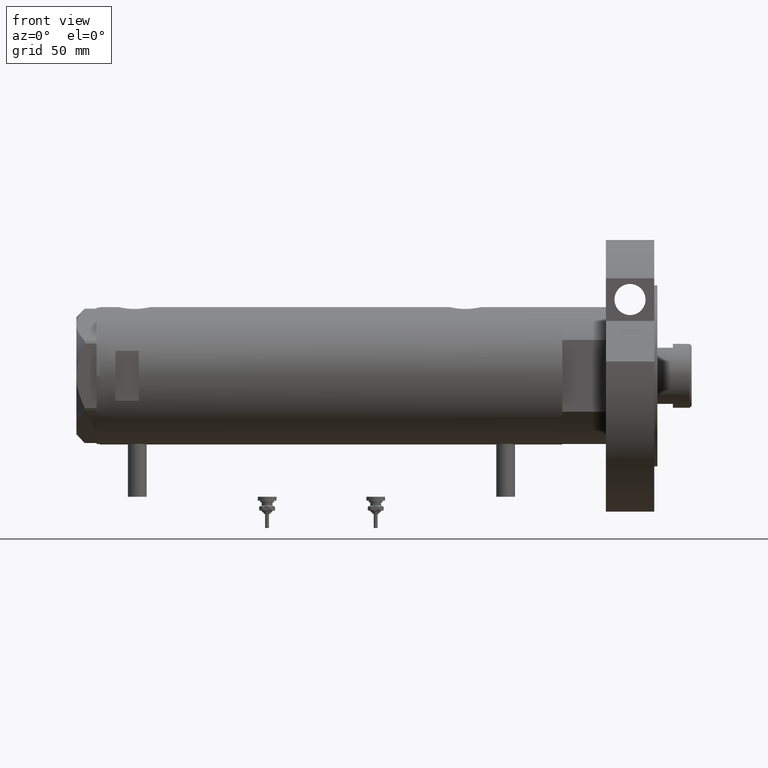
[diagram: clean part render]
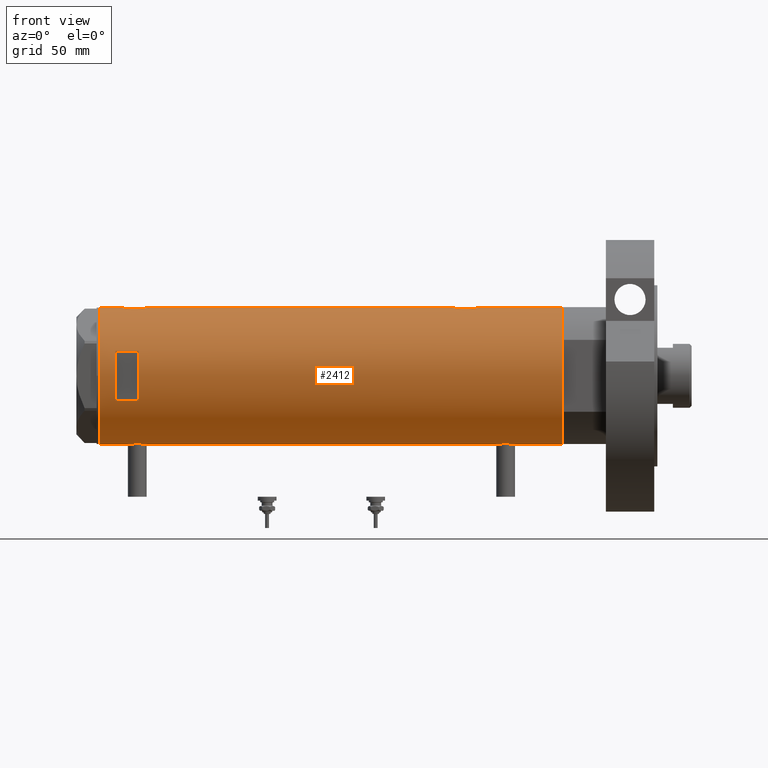
[diagram: same view with one face highlighted and labeled with its STEP entity id]
A machine part, front view. The second image highlights one B-rep face of the part: STEP entity #2412.
In plain terms, the highlighted cylindrical surface (partial cylindrical patch) has radius 44 mm, axis along (-1, -0, 0).
Its self-contained STEP definition (entity closure, byte-faithful):
#23 = CARTESIAN_POINT ( 'NONE',  ( 42.84850870634925002, -10.00026508230968325, 125.2441608487825988 ) ) ;
#99 = CARTESIAN_POINT ( 'NONE',  ( 42.92612181419237771, -9.662173761604313071, 128.4979978960971323 ) ) ;
#109 = CARTESIAN_POINT ( 'NONE',  ( -43.57664920749031978, -6.089110472216501257, -113.3236308686941385 ) ) ;
#128 = CARTESIAN_POINT ( 'NONE',  ( 43.24269204559829660, -8.130405600641545050, -80.26885497193008234 ) ) ;
#130 = EDGE_CURVE ( 'NONE', #2811, #1854, #4066, .T. ) ;
#137 = CARTESIAN_POINT ( 'NONE',  ( 43.80655905412561424, -4.132395729537634566, 135.0120532619376377 ) ) ;
#143 = CARTESIAN_POINT ( 'NONE',  ( -43.71863308610073773, -4.973248429199020215, -108.0926220987882687 ) ) ;
#163 = CARTESIAN_POINT ( 'NONE',  ( 43.13833976206232990, -8.672905216733550304, -81.07967078979186226 ) ) ;
#168 = AXIS2_PLACEMENT_3D ( 'NONE', #6607, #3704, #5573 ) ;
#175 = CARTESIAN_POINT ( 'NONE',  ( 43.85817087158036287, -3.542878095418166229, 116.5429633888447682 ) ) ;
#182 = CARTESIAN_POINT ( 'NONE',  ( -43.91347832647110039, -2.763895659397271665, -117.5093864937758497 ) ) ;
#203 = CARTESIAN_POINT ( 'NONE',  ( 42.92195198079053142, -9.681069926205539744, -88.68932500906515770 ) ) ;
#212 = CARTESIAN_POINT ( 'NONE',  ( -43.55964145621772587, -6.209995197331128480, 125.0152361338357565 ) ) ;
#223 = CARTESIAN_POINT ( 'NONE',  ( -43.57636709704394917, -6.091127289750676077, -110.4850067433901586 ) ) ;
#240 = ORIENTED_EDGE ( 'NONE', *, *, #823, .F. ) ;
#242 = CARTESIAN_POINT ( 'NONE',  ( 43.71528002050701645, -5.005885132985640418, -77.43693693285514712 ) ) ;
#254 = CARTESIAN_POINT ( 'NONE',  ( 44.00000000000000000, 0.000000000000000000, -148.1999999999999886 ) ) ;
#288 = CARTESIAN_POINT ( 'NONE',  ( -43.55981666146649900, -6.208773019004407701, 123.3756200080638195 ) ) ;
#367 = EDGE_CURVE ( 'NONE', #5848, #728, #6651, .T. ) ;
#392 = DIRECTION ( 'NONE',  ( 0.000000000000000000, 0.000000000000000000, 1.000000000000000000 ) ) ;
#617 = DIRECTION ( 'NONE',  ( 1.000000000000000000, 0.000000000000000000, 0.000000000000000000 ) ) ;
#645 = CARTESIAN_POINT ( 'NONE',  ( -43.58327167020068060, -6.041691433183235205, -110.2867244921663428 ) ) ;
#675 = CARTESIAN_POINT ( 'NONE',  ( 42.96858625215908489, -9.471543237354838496, 129.1244477931078336 ) ) ;
#685 = CARTESIAN_POINT ( 'NONE',  ( -43.88927795770375440, -3.124736516396337649, -117.3166740492380598 ) ) ;
#697 = AXIS2_PLACEMENT_3D ( 'NONE', #4098, #5774, #7442 ) ;
#724 = CARTESIAN_POINT ( 'NONE',  ( -43.55388615229803406, -6.249720082677240107, -112.3173251411198379 ) ) ;
#728 = VERTEX_POINT ( 'NONE', #2095 ) ;
#743 = CARTESIAN_POINT ( 'NONE',  ( 43.80655905412562134, -4.132395729537634566, -76.98794673806234812 ) ) ;
#751 = CARTESIAN_POINT ( 'NONE',  ( 43.99999999999998579, -0.6628808997490075461, 115.8999999999999915 ) ) ;
#776 = CARTESIAN_POINT ( 'NONE',  ( 43.39114022679083860, -7.298186114522535739, -79.25582720507938461 ) ) ;
#816 = CARTESIAN_POINT ( 'NONE',  ( 43.27861175590267351, -7.937636171351966752, -92.19102867990994810 ) ) ;
#823 = EDGE_CURVE ( 'NONE', #1006, #1289, #5584, .T. ) ;
#826 = CARTESIAN_POINT ( 'NONE',  ( -43.99432382855035684, -0.8140126287075735156, 117.9895783318308560 ) ) ;
#850 = ORIENTED_EDGE ( 'NONE', *, *, #946, .T. ) ;
#896 = CARTESIAN_POINT ( 'NONE',  ( 43.94187300917954531, -2.283844398366604800, 116.1587395318295250 ) ) ;
#904 = CARTESIAN_POINT ( 'NONE',  ( -43.97729452866927602, -1.427712738744854715, -105.8117709255657815 ) ) ;
#938 = CARTESIAN_POINT ( 'NONE',  ( 44.00000000000000000, -3.917205576288906830E-21, 135.9000000000000341 ) ) ;
#946 = EDGE_CURVE ( 'NONE', #2647, #1008, #6154, .T. ) ;
#965 = EDGE_CURVE ( 'NONE', #1008, #1402, #5501, .T. ) ;
#977 = VERTEX_POINT ( 'NONE', #4927 ) ;
#1006 = VERTEX_POINT ( 'NONE', #938 ) ;
#1008 = VERTEX_POINT ( 'NONE', #3898 ) ;
#1090 = ORIENTED_EDGE ( 'NONE', *, *, #6879, .F. ) ;
#1109 = CYLINDRICAL_SURFACE ( 'NONE', #6302, 44.00000000000000000 ) ;
#1126 = CARTESIAN_POINT ( 'NONE',  ( 43.13833976206232990, -8.672905216733560962, 130.9203292102081377 ) ) ;
#1130 = ORIENTED_EDGE ( 'NONE', *, *, #4938, .F. ) ;
#1166 = CARTESIAN_POINT ( 'NONE',  ( 43.27890888111421930, -7.936045294464972422, 131.9931843665719668 ) ) ;
#1241 = CARTESIAN_POINT ( 'NONE',  ( 43.57553740812844723, -6.102230194686611320, 117.9710034401132788 ) ) ;
#1280 = CARTESIAN_POINT ( 'NONE',  ( -43.80623767923740530, -4.134861581628529237, 128.9043636726069337 ) ) ;
#1283 = CARTESIAN_POINT ( 'NONE',  ( 43.77905627191559290, -4.445085099228545111, 116.9185916568396806 ) ) ;
#1289 = VERTEX_POINT ( 'NONE', #7540 ) ;
#1295 = CARTESIAN_POINT ( 'NONE',  ( -43.93596008603760339, -2.395372424984027582, -117.6834918053061330 ) ) ;
#1312 = CARTESIAN_POINT ( 'NONE',  ( 43.07321175413309788, -8.986876637256990819, -90.53428201988754154 ) ) ;
#1321 = CARTESIAN_POINT ( 'NONE',  ( -43.99999999999999289, -0.4134142287044815789, 130.4500000000000455 ) ) ;
#1352 = CARTESIAN_POINT ( 'NONE',  ( 43.50370990764398016, -6.606474645717129057, -78.56479064715114191 ) ) ;
#1358 = CARTESIAN_POINT ( 'NONE',  ( -43.97029046111976669, -1.628482392291942471, 130.2375861979205354 ) ) ;
#1359 = LINE ( 'NONE', #3233, #5578 ) ;
#1362 = B_SPLINE_CURVE_WITH_KNOTS ( 'NONE', 3,
 ( #6094, #4344, #7088, #3122, #5946, #743, #3081, #242, #2997, #5376, #1352, #776, #4884, #6512, #128, #163, #2505, #5450, #7119, #2582, #2433, #4839, #3731, #4767, #1858, #7160, #203, #2547, #1312, #1388, #4191, #816, #1939, #4271, #2470, #4803, #6595, #1893, #4230, #3695, #6552, #6021, #7197, #6630, #4533, #6131, #2195 ),
 .UNSPECIFIED., .F., .F.,
 ( 4, 2, 2, 2, 2, 2, 2, 2, 2, 2, 1, 2, 2, 2, 2, 2, 2, 2, 2, 2, 2, 2, 2, 4 ),
 ( 0.03136730421198213881, 0.03332724096696802751, 0.03528717772195391622, 0.03626714609944684670, 0.03724711447693978411, 0.03920705123192565894, 0.04018701960941859636, 0.04116698798691152683, 0.04312692474189736697, 0.04410689311939030438, 0.04508686149688324180, 0.04606682987437617921, 0.04704679825186912356, 0.04900673500685504003, 0.05096667176184094955, 0.05292660851682686601, 0.05390657689431983812, 0.05488654527181281717, 0.05586651364930578928, 0.05684648202679876139, 0.05880641878178470561, 0.05978638715927767078, 0.06076635553677063595, 0.06272629229175656629 ),
 .UNSPECIFIED. ) ;
#1367 = CARTESIAN_POINT ( 'NONE',  ( -43.94477385411916970, -2.211843467998029666, -106.0509277007713678 ) ) ;
#1388 = CARTESIAN_POINT ( 'NONE',  ( 43.13689707656756411, -8.680169016269173810, -91.10836902111202562 ) ) ;
#1402 = VERTEX_POINT ( 'NONE', #3085 ) ;
#1554 = CIRCLE ( 'NONE', #4856, 44.00000000000000000 ) ;
#1721 = CARTESIAN_POINT ( 'NONE',  ( 43.68175117880464597, -5.289576318274422206, 134.3927754329155846 ) ) ;
#1773 = DIRECTION ( 'NONE',  ( -1.000000000000000000, 0.000000000000000000, 0.000000000000000000 ) ) ;
#1793 = CARTESIAN_POINT ( 'NONE',  ( 43.35257225115238100, -7.523216248090027314, 119.3039469640765731 ) ) ;
#1831 = CARTESIAN_POINT ( 'NONE',  ( 43.24192112218942441, -8.134529092006102857, 120.0744777013589299 ) ) ;
#1839 = CARTESIAN_POINT ( 'NONE',  ( -43.55964145621772587, -6.209995197331129368, -111.0847638661642947 ) ) ;
#1854 = VERTEX_POINT ( 'NONE', #4083 ) ;
#1858 = CARTESIAN_POINT ( 'NONE',  ( 42.84850870634926423, -10.00026508230968503, -86.75583915121745804 ) ) ;
#1869 = CARTESIAN_POINT ( 'NONE',  ( 43.71626298452614634, -5.019105827807306852, 117.2258656202040470 ) ) ;
#1893 = CARTESIAN_POINT ( 'NONE',  ( 43.61181667275830165, -5.838254419127787642, -94.22544109417493985 ) ) ;
#1901 = ORIENTED_EDGE ( 'NONE', *, *, #367, .F. ) ;
#1904 = CARTESIAN_POINT ( 'NONE',  ( -43.74813644611202079, -4.709999724143500544, 128.3284404394322564 ) ) ;
#1927 = CARTESIAN_POINT ( 'NONE',  ( -44.00000000000000000, 3.205170455528113082E-15, 130.4500000000000171 ) ) ;
#1939 = CARTESIAN_POINT ( 'NONE',  ( 43.35257225115238811, -7.523216248090025537, -92.69605303592345535 ) ) ;
#1948 = CARTESIAN_POINT ( 'NONE',  ( -43.80686114384899810, -4.128296917151109469, 119.4898414487168878 ) ) ;
#1959 = CARTESIAN_POINT ( 'NONE',  ( -43.83513771791772484, -3.820747781112549202, -106.9367898170362565 ) ) ;
#1985 = CARTESIAN_POINT ( 'NONE',  ( -43.95442538259508325, -2.011679190499021885, 118.2790645349021617 ) ) ;
#2020 = CARTESIAN_POINT ( 'NONE',  ( -43.59994860325049615, -5.920144153815568799, 122.1859364243023549 ) ) ;
#2050 = CARTESIAN_POINT ( 'NONE',  ( -44.00000000000000000, 5.388445916248353619E-15, -148.1999999999999886 ) ) ;
#2071 = CARTESIAN_POINT ( 'NONE',  ( -44.00000000000000711, -0.4134142287044808017, -105.6500000000000057 ) ) ;
#2095 = CARTESIAN_POINT ( 'NONE',  ( 15.96871942267132027, -40.99999999999999289, 138.1999999999999886 ) ) ;
#2173 = EDGE_CURVE ( 'NONE', #7045, #1402, #1362, .T. ) ;
#2195 = CARTESIAN_POINT ( 'NONE',  ( 44.00000000000000000, -2.552687571866728611E-15, -96.10000000000000853 ) ) ;
#2226 = FACE_OUTER_BOUND ( 'NONE', #2756, .T. ) ;
#2264 = CARTESIAN_POINT ( 'NONE',  ( -15.96871942267132027, -40.99999999999999289, 138.1999999999999886 ) ) ;
#2279 = CARTESIAN_POINT ( 'NONE',  ( -43.99417593155912698, -0.8219945290704717689, -105.6906189758703931 ) ) ;
#2330 = CARTESIAN_POINT ( 'NONE',  ( 42.99316244204496229, -9.359736474891649394, 129.4360302003217669 ) ) ;
#2361 = CARTESIAN_POINT ( 'NONE',  ( 43.99999999999999289, -0.6537011444665495885, 135.9000000000000341 ) ) ;
#2396 = VERTEX_POINT ( 'NONE', #2264 ) ;
#2412 = ADVANCED_FACE ( 'NONE', ( #2226, #5285 ), #1109, .T. ) ;
#2433 = CARTESIAN_POINT ( 'NONE',  ( 42.89003040145178147, -9.821289533110931558, -84.13508371670005204 ) ) ;
#2443 = CARTESIAN_POINT ( 'NONE',  ( 43.35323102813806173, -7.519449998269469582, 132.5004228928426642 ) ) ;
#2470 = CARTESIAN_POINT ( 'NONE',  ( 43.46477581456301920, -6.845969322274847890, -93.39644460123308534 ) ) ;
#2484 = CARTESIAN_POINT ( 'NONE',  ( -43.64064219598290606, -5.614224114468902904, -114.6768548961947261 ) ) ;
#2488 = ORIENTED_EDGE ( 'NONE', *, *, #2173, .F. ) ;
#2505 = CARTESIAN_POINT ( 'NONE',  ( 43.07447880731469780, -8.980869115410037296, -81.65290029795900750 ) ) ;
#2515 = CARTESIAN_POINT ( 'NONE',  ( -43.66524845950888789, -5.422010366683132965, 121.0646195664701850 ) ) ;
#2527 = CARTESIAN_POINT ( 'NONE',  ( -43.55981666146650610, -6.208773019004409477, -112.7243799919361606 ) ) ;
#2547 = CARTESIAN_POINT ( 'NONE',  ( 42.96573602780769363, -9.487415353952519226, -89.32734544583622949 ) ) ;
#2566 = CARTESIAN_POINT ( 'NONE',  ( -43.74870614644074607, -4.704745394280565485, -116.0344648734002249 ) ) ;
#2582 = CARTESIAN_POINT ( 'NONE',  ( 42.92612181419234219, -9.662173761604309519, -83.50200210390283928 ) ) ;
#2590 = CARTESIAN_POINT ( 'NONE',  ( -43.64064219598290606, -5.614224114468902904, 121.4231451038052683 ) ) ;
#2626 = CARTESIAN_POINT ( 'NONE',  ( -43.58327167020067350, -6.041691433183231652, 125.8132755078336658 ) ) ;
#2647 = VERTEX_POINT ( 'NONE', #2050 ) ;
#2756 = EDGE_LOOP ( 'NONE', ( #6359, #850, #4187, #2488, #7493, #240, #4546, #1130, #7145, #6620, #5598, #7389 ) ) ;
#2757 = CARTESIAN_POINT ( 'NONE',  ( -44.00000000000000000, 5.388445781982983516E-15, 117.9500000000000028 ) ) ;
#2811 = VERTEX_POINT ( 'NONE', #1927 ) ;
#2939 = CARTESIAN_POINT ( 'NONE',  ( 42.84860178791323193, -9.999866241079301332, 126.2339638269416895 ) ) ;
#2977 = CARTESIAN_POINT ( 'NONE',  ( -43.59959777593760322, -5.922725608094071781, -109.8935068878258079 ) ) ;
#2997 = CARTESIAN_POINT ( 'NONE',  ( 43.68175117880463887, -5.289576318274435529, -77.60722456708444383 ) ) ;
#3011 = CARTESIAN_POINT ( 'NONE',  ( 43.71528002050701645, -5.005885132985630648, 134.5630630671448955 ) ) ;
#3021 = CARTESIAN_POINT ( 'NONE',  ( -43.71916086763248899, -4.968610719017467758, -115.7133599885462871 ) ) ;
#3050 = CARTESIAN_POINT ( 'NONE',  ( -43.94477385411916259, -2.211843467998029222, 130.0490722992286408 ) ) ;
#3053 = CARTESIAN_POINT ( 'NONE',  ( 43.98543813568862504, -1.304985013906734048, 135.8365306627388236 ) ) ;
#3062 = CARTESIAN_POINT ( 'NONE',  ( -43.60904414879379942, -5.852991024272603759, -109.6984368334709075 ) ) ;
#3078 = VERTEX_POINT ( 'NONE', #5344 ) ;
#3081 = CARTESIAN_POINT ( 'NONE',  ( 43.77763691689010273, -4.427538730370040199, -77.12757287791932015 ) ) ;
#3085 = CARTESIAN_POINT ( 'NONE',  ( 44.00000000000000000, -2.552687571866728611E-15, -96.10000000000000853 ) ) ;
#3098 = CARTESIAN_POINT ( 'NONE',  ( -43.97755541524606571, -1.419649999726221967, -117.9901114392363439 ) ) ;
#3122 = CARTESIAN_POINT ( 'NONE',  ( 43.92776409818817740, -2.602555515054471247, -76.42196650712921269 ) ) ;
#3132 = CARTESIAN_POINT ( 'NONE',  ( -44.00000000000000000, 3.205170455528113082E-15, 130.4500000000000171 ) ) ;
#3143 = CARTESIAN_POINT ( 'NONE',  ( -43.59994860325051036, -5.920144153815573240, -113.9140635756975968 ) ) ;
#3177 = EDGE_CURVE ( 'NONE', #3408, #2811, #3774, .T. ) ;
#3204 = CARTESIAN_POINT ( 'NONE',  ( -43.83572624786196315, -3.813948911733267888, 119.2316356977933651 ) ) ;
#3222 = DIRECTION ( 'NONE',  ( 0.000000000000000000, 0.000000000000000000, 1.000000000000000000 ) ) ;
#3233 = CARTESIAN_POINT ( 'NONE',  ( 44.00000000000000000, 0.000000000000000000, -148.1999999999999886 ) ) ;
#3265 = CARTESIAN_POINT ( 'NONE',  ( -44.00000000000000000, 5.388445916248353619E-15, -148.1999999999999886 ) ) ;
#3294 = DIRECTION ( 'NONE',  ( 0.000000000000000000, 0.000000000000000000, 1.000000000000000000 ) ) ;
#3408 = VERTEX_POINT ( 'NONE', #6441 ) ;
#3474 = CARTESIAN_POINT ( 'NONE',  ( 43.07447880731469780, -8.980869115410031966, 130.3470997020410209 ) ) ;
#3511 = CIRCLE ( 'NONE', #4000, 44.00000000000000000 ) ;
#3555 = CARTESIAN_POINT ( 'NONE',  ( 43.39114022679084570, -7.298186114522522416, 132.7441727949206438 ) ) ;
#3562 = CARTESIAN_POINT ( 'NONE',  ( 15.96871942267132027, -40.99999999999999289, 123.1999999999999744 ) ) ;
#3598 = LINE ( 'NONE', #5887, #5006 ) ;
#3628 = CARTESIAN_POINT ( 'NONE',  ( -43.95404166778755695, -2.020054257598456360, 130.1180894548565448 ) ) ;
#3639 = CARTESIAN_POINT ( 'NONE',  ( -43.83572624786197025, -3.813948911733268776, -116.8683643022066150 ) ) ;
#3695 = CARTESIAN_POINT ( 'NONE',  ( 43.77905627191558580, -4.445085099228550440, -95.08140834316036205 ) ) ;
#3701 = CARTESIAN_POINT ( 'NONE',  ( -43.91347832647110039, -2.763895659397270776, 118.5906135062241589 ) ) ;
#3704 = DIRECTION ( 'NONE',  ( 0.000000000000000000, 0.000000000000000000, 1.000000000000000000 ) ) ;
#3710 = CARTESIAN_POINT ( 'NONE',  ( -43.95404166778755695, -2.020054257598466574, -105.9819105451434638 ) ) ;
#3731 = CARTESIAN_POINT ( 'NONE',  ( 42.85249883256043546, -9.983208936152868418, -85.43427783458179192 ) ) ;
#3774 = B_SPLINE_CURVE_WITH_KNOTS ( 'NONE', 3,
 ( #2757, #5531, #826, #5499, #4968, #1985, #5384, #3701, #4925, #6522, #3204, #1948, #4314, #6637, #2515, #2590, #6105, #2020, #7170, #4851, #288, #5460, #4279, #212, #4810, #2626, #7279, #7129, #6604, #4355, #4199, #1904, #1280, #7238, #6561, #5994, #3050, #3628, #1358, #5954, #4241, #1321, #3132 ),
 .UNSPECIFIED., .F., .F.,
 ( 4, 2, 2, 1, 2, 2, 2, 2, 2, 2, 2, 2, 2, 2, 2, 2, 2, 2, 2, 2, 2, 4 ),
 ( 0.01956509074799516260, 0.02078761141254046457, 0.02139887174481311383, 0.02201013207708576655, 0.02262139240935841580, 0.02323265274163106506, 0.02445517340617638785, 0.02567769407072171411, 0.02690021473526703691, 0.02751147506753969657, 0.02812273539981235970, 0.02934525606435772760, 0.03056777672890308856, 0.03117903706117573087, 0.03179029739344837319, 0.03301281805799358149, 0.03423533872253878979, 0.03545785938708399809, 0.03668038005162919946, 0.03729164038390180014, 0.03790290071617440082, 0.03912542138071962300 ),
 .UNSPECIFIED. ) ;
#3802 = LINE ( 'NONE', #5591, #6206 ) ;
#3804 = DIRECTION ( 'NONE',  ( 0.000000000000000000, 0.000000000000000000, 1.000000000000000000 ) ) ;
#3887 = CIRCLE ( 'NONE', #697, 44.00000000000000000 ) ;
#3898 = CARTESIAN_POINT ( 'NONE',  ( 44.00000000000000000, 0.000000000000000000, -148.1999999999999886 ) ) ;
#3952 = VECTOR ( 'NONE', #5857, 1000.000000000000000 ) ;
#4000 = AXIS2_PLACEMENT_3D ( 'NONE', #6325, #6431, #1773 ) ;
#4026 = ORIENTED_EDGE ( 'NONE', *, *, #5165, .F. ) ;
#4053 = CARTESIAN_POINT ( 'NONE',  ( 43.24269204559828239, -8.130405600641548602, 131.7311450280699034 ) ) ;
#4066 = LINE ( 'NONE', #5247, #3952 ) ;
#4083 = CARTESIAN_POINT ( 'NONE',  ( -44.00000000000000000, 5.388445916248353619E-15, 148.1999999999999886 ) ) ;
#4098 = CARTESIAN_POINT ( 'NONE',  ( 0.000000000000000000, 0.000000000000000000, 138.1999999999999886 ) ) ;
#4130 = CARTESIAN_POINT ( 'NONE',  ( 42.92195198079053142, -9.681069926205541520, 123.3106749909349134 ) ) ;
#4131 = LINE ( 'NONE', #5422, #4255 ) ;
#4169 = CARTESIAN_POINT ( 'NONE',  ( 43.46477581456304051, -6.845969322274839008, 118.6035553987669147 ) ) ;
#4175 = CARTESIAN_POINT ( 'NONE',  ( -43.64013512596971367, -5.618144550806293047, -109.1311574562683404 ) ) ;
#4187 = ORIENTED_EDGE ( 'NONE', *, *, #965, .T. ) ;
#4191 = CARTESIAN_POINT ( 'NONE',  ( 43.24192112218942441, -8.134529092006102857, -91.92552229864112689 ) ) ;
#4199 = CARTESIAN_POINT ( 'NONE',  ( -43.71863308610075194, -4.973248429199021992, 128.0073779012117257 ) ) ;
#4201 = CARTESIAN_POINT ( 'NONE',  ( 42.86761451923556621, -9.918101748202657220, 127.2186752354962636 ) ) ;
#4230 = CARTESIAN_POINT ( 'NONE',  ( 43.71626298452615345, -5.019105827807321951, -94.77413437979603827 ) ) ;
#4237 = EDGE_LOOP ( 'NONE', ( #4026, #1090, #5147, #1901 ) ) ;
#4241 = CARTESIAN_POINT ( 'NONE',  ( -43.99417593155911987, -0.8219945290704597785, 130.4093810241296012 ) ) ;
#4252 = CARTESIAN_POINT ( 'NONE',  ( -43.80686114384900520, -4.128296917151112133, -116.6101585512831207 ) ) ;
#4255 = VECTOR ( 'NONE', #4698, 1000.000000000000000 ) ;
#4271 = CARTESIAN_POINT ( 'NONE',  ( 43.39001814939470592, -7.304817421876465211, -92.93703460671677874 ) ) ;
#4279 = CARTESIAN_POINT ( 'NONE',  ( -43.55380622335314200, -6.250277076879244831, 124.6088983339019194 ) ) ;
#4312 = VERTEX_POINT ( 'NONE', #7473 ) ;
#4314 = CARTESIAN_POINT ( 'NONE',  ( -43.74870614644076738, -4.704745394280562820, 120.0655351265997410 ) ) ;
#4344 = CARTESIAN_POINT ( 'NONE',  ( 44.00000000000000000, -0.6537011444665536963, -76.10000000000002274 ) ) ;
#4355 = CARTESIAN_POINT ( 'NONE',  ( -43.66469451360047316, -5.426465874727615990, 127.3277459186421225 ) ) ;
#4533 = CARTESIAN_POINT ( 'NONE',  ( 43.98503203903424463, -1.316644100880403956, -96.03472955295633540 ) ) ;
#4546 = ORIENTED_EDGE ( 'NONE', *, *, #6580, .T. ) ;
#4576 = CARTESIAN_POINT ( 'NONE',  ( -43.97029046111977379, -1.628482392291957126, -105.8624138020794447 ) ) ;
#4633 = VERTEX_POINT ( 'NONE', #5047 ) ;
#4662 = CARTESIAN_POINT ( 'NONE',  ( 42.89003040145177437, -9.821289533110936887, 127.8649162832999622 ) ) ;
#4697 = CARTESIAN_POINT ( 'NONE',  ( 42.86369059155248351, -9.935849517229273786, 124.5936258998180222 ) ) ;
#4698 = DIRECTION ( 'NONE',  ( 0.000000000000000000, 0.000000000000000000, 1.000000000000000000 ) ) ;
#4740 = CARTESIAN_POINT ( 'NONE',  ( 43.13689707656755701, -8.680169016269175586, 120.8916309788880312 ) ) ;
#4767 = CARTESIAN_POINT ( 'NONE',  ( 42.84860178791321772, -9.999866241079296003, -85.76603617305838156 ) ) ;
#4803 = CARTESIAN_POINT ( 'NONE',  ( 43.50208939911752992, -6.605519787823897815, -93.61487246254432648 ) ) ;
#4810 = CARTESIAN_POINT ( 'NONE',  ( -43.57636709704393496, -6.091127289750671636, 125.6149932566098215 ) ) ;
#4812 = CARTESIAN_POINT ( 'NONE',  ( 43.88549648731375896, -3.229309612650777872, 135.3866430248638437 ) ) ;
#4819 = CARTESIAN_POINT ( 'NONE',  ( -43.87623998657198143, -3.302247739865014964, -117.2103434351974443 ) ) ;
#4839 = CARTESIAN_POINT ( 'NONE',  ( 42.86761451923556621, -9.918101748202653667, -84.78132476450375066 ) ) ;
#4851 = CARTESIAN_POINT ( 'NONE',  ( -43.57664920749031978, -6.089110472216502146, 122.7763691313058985 ) ) ;
#4856 = AXIS2_PLACEMENT_3D ( 'NONE', #7130, #7015, #7171 ) ;
#4884 = CARTESIAN_POINT ( 'NONE',  ( 43.35323102813806173, -7.519449998269473134, -79.49957710715735004 ) ) ;
#4902 = CARTESIAN_POINT ( 'NONE',  ( -44.00000000000000000, 5.388445781982983516E-15, -118.1500000000000057 ) ) ;
#4925 = CARTESIAN_POINT ( 'NONE',  ( -43.88927795770376150, -3.124736516396337205, 118.7833259507619630 ) ) ;
#4927 = CARTESIAN_POINT ( 'NONE',  ( -15.96871942267132027, -40.99999999999999289, 123.1999999999999744 ) ) ;
#4935 = CARTESIAN_POINT ( 'NONE',  ( 44.00000000000000000, -3.917104602093038540E-21, -76.10000000000000853 ) ) ;
#4938 = EDGE_CURVE ( 'NONE', #1854, #4633, #1554, .T. ) ;
#4968 = CARTESIAN_POINT ( 'NONE',  ( -43.97059312650997498, -1.620278982928819778, 118.1602130861413116 ) ) ;
#5004 = EDGE_CURVE ( 'NONE', #7045, #1289, #1359, .T. ) ;
#5006 = VECTOR ( 'NONE', #5924, 1000.000000000000000 ) ;
#5047 = CARTESIAN_POINT ( 'NONE',  ( 44.00000000000000000, 0.000000000000000000, 148.1999999999999886 ) ) ;
#5147 = ORIENTED_EDGE ( 'NONE', *, *, #5630, .F. ) ;
#5165 = EDGE_CURVE ( 'NONE', #977, #5848, #3511, .T. ) ;
#5235 = CARTESIAN_POINT ( 'NONE',  ( 43.50370990764397305, -6.606474645717115735, 133.4352093528489149 ) ) ;
#5247 = CARTESIAN_POINT ( 'NONE',  ( -44.00000000000000000, 5.388445916248353619E-15, -148.1999999999999886 ) ) ;
#5285 = FACE_BOUND ( 'NONE', #4237, .T. ) ;
#5304 = CARTESIAN_POINT ( 'NONE',  ( 43.07321175413309078, -8.986876637256990819, 121.4657179801124727 ) ) ;
#5314 = CARTESIAN_POINT ( 'NONE',  ( -43.74813644611199948, -4.709999724143497879, -107.7715595605677095 ) ) ;
#5344 = CARTESIAN_POINT ( 'NONE',  ( -44.00000000000000000, 4.742435893011557518E-16, -105.6499999999999915 ) ) ;
#5357 = CARTESIAN_POINT ( 'NONE',  ( -43.66524845950890210, -5.422010366683132965, -115.0353804335297809 ) ) ;
#5376 = CARTESIAN_POINT ( 'NONE',  ( 43.57790701154753066, -6.104591320335878812, -78.15258699105068274 ) ) ;
#5384 = CARTESIAN_POINT ( 'NONE',  ( -43.93596008603758918, -2.395372424984029802, 118.4165081946938756 ) ) ;
#5386 = CARTESIAN_POINT ( 'NONE',  ( 43.92776409818819872, -2.602555515054473467, 135.5780334928707589 ) ) ;
#5393 = CARTESIAN_POINT ( 'NONE',  ( -43.66469451360045895, -5.426465874727613325, -108.7722540813579002 ) ) ;
#5421 = CARTESIAN_POINT ( 'NONE',  ( 44.00000000000000000, -1.726036355082439716E-15, 115.9000000000000199 ) ) ;
#5422 = CARTESIAN_POINT ( 'NONE',  ( -44.00000000000000000, 5.388445916248353619E-15, -148.1999999999999886 ) ) ;
#5426 = VECTOR ( 'NONE', #7132, 1000.000000000000000 ) ;
#5450 = CARTESIAN_POINT ( 'NONE',  ( 42.99316244204495518, -9.359736474891656499, -82.56396979967827576 ) ) ;
#5460 = CARTESIAN_POINT ( 'NONE',  ( -43.55388615229802696, -6.249720082677238331, 123.7826748588801564 ) ) ;
#5469 = CARTESIAN_POINT ( 'NONE',  ( -43.58358352828439308, -6.039443007521657414, -113.5216309838574347 ) ) ;
#5499 = CARTESIAN_POINT ( 'NONE',  ( -43.97755541524607992, -1.419649999726221745, 118.1098885607636646 ) ) ;
#5501 = LINE ( 'NONE', #254, #5426 ) ;
#5531 = CARTESIAN_POINT ( 'NONE',  ( -44.00000000000001421, -0.4080709675389180835, 117.9500000000000171 ) ) ;
#5532 = CARTESIAN_POINT ( 'NONE',  ( 43.98503203903423753, -1.316644100880400625, 115.9652704470436788 ) ) ;
#5555 = EDGE_CURVE ( 'NONE', #2647, #4312, #6160, .T. ) ;
#5573 = DIRECTION ( 'NONE',  ( 1.000000000000000000, 0.000000000000000000, 0.000000000000000000 ) ) ;
#5578 = VECTOR ( 'NONE', #392, 1000.000000000000000 ) ;
#5584 = B_SPLINE_CURVE_WITH_KNOTS ( 'NONE', 3,
 ( #6377, #2361, #3053, #5386, #4812, #137, #5915, #3011, #1721, #7058, #5235, #3555, #2443, #1166, #4053, #1126, #3474, #2330, #675, #99, #4662, #4201, #5842, #2939, #23, #4697, #4130, #7017, #5304, #4740, #1831, #5880, #1793, #6451, #4169, #6488, #1241, #7096, #1869, #1283, #175, #6566, #7206, #896, #5532, #751, #5421 ),
 .UNSPECIFIED., .F., .F.,
 ( 4, 2, 2, 2, 2, 2, 2, 2, 2, 2, 1, 2, 2, 2, 2, 2, 2, 2, 2, 2, 2, 2, 2, 4 ),
 ( 0.03136730421198213187, 0.03332724096696802751, 0.03528717772195392316, 0.03626714609944686751, 0.03724711447693981187, 0.03920705123192570751, 0.04018701960941865881, 0.04116698798691159622, 0.04312692474189755432, 0.04410689311939049867, 0.04508686149688344302, 0.04606682987437638044, 0.04704679825186932479, 0.04900673500685520656, 0.05096667176184109527, 0.05292660851682697010, 0.05390657689431993527, 0.05488654527181288656, 0.05586651364930585173, 0.05684648202679880302, 0.05880641878178471949, 0.05978638715927768466, 0.06076635553677064983, 0.06272629229175658017 ),
 .UNSPECIFIED. ) ;
#5591 = CARTESIAN_POINT ( 'NONE',  ( 44.00000000000000000, 0.000000000000000000, -148.1999999999999886 ) ) ;
#5598 = ORIENTED_EDGE ( 'NONE', *, *, #6191, .F. ) ;
#5630 = EDGE_CURVE ( 'NONE', #728, #2396, #3887, .T. ) ;
#5721 = CARTESIAN_POINT ( 'NONE',  ( -44.00000000000000000, 4.742435893011557518E-16, -105.6499999999999915 ) ) ;
#5774 = DIRECTION ( 'NONE',  ( -0.000000000000000000, 0.000000000000000000, -1.000000000000000000 ) ) ;
#5842 = CARTESIAN_POINT ( 'NONE',  ( 42.85249883256044257, -9.983208936152875523, 126.5657221654182791 ) ) ;
#5848 = VERTEX_POINT ( 'NONE', #3562 ) ;
#5857 = DIRECTION ( 'NONE',  ( 0.000000000000000000, 0.000000000000000000, 1.000000000000000000 ) ) ;
#5860 = CARTESIAN_POINT ( 'NONE',  ( 0.000000000000000000, 0.000000000000000000, -148.1999999999999886 ) ) ;
#5880 = CARTESIAN_POINT ( 'NONE',  ( 43.27861175590269482, -7.937636171351966752, 119.8089713200900661 ) ) ;
#5887 = CARTESIAN_POINT ( 'NONE',  ( -15.96871942267132027, -40.99999999999999289, -148.1999999999999886 ) ) ;
#5915 = CARTESIAN_POINT ( 'NONE',  ( 43.77763691689009562, -4.427538730370028652, 134.8724271220806656 ) ) ;
#5924 = DIRECTION ( 'NONE',  ( -0.000000000000000000, -0.000000000000000000, -1.000000000000000000 ) ) ;
#5946 = CARTESIAN_POINT ( 'NONE',  ( 43.88549648731377317, -3.229309612650779648, -76.61335697513617049 ) ) ;
#5954 = CARTESIAN_POINT ( 'NONE',  ( -43.97729452866926891, -1.427712738744846055, 130.2882290744342981 ) ) ;
#5966 = CARTESIAN_POINT ( 'NONE',  ( -43.99432382855034973, -0.8140126287075730716, -118.1104216681691526 ) ) ;
#5994 = CARTESIAN_POINT ( 'NONE',  ( -43.91398925748692506, -2.775454910411446541, 129.8147077568106624 ) ) ;
#6003 = CARTESIAN_POINT ( 'NONE',  ( -43.95442538259509746, -2.011679190499023662, -117.8209354650977616 ) ) ;
#6021 = CARTESIAN_POINT ( 'NONE',  ( 43.88203303552248968, -3.235230624304769709, -95.56792613063983310 ) ) ;
#6094 = CARTESIAN_POINT ( 'NONE',  ( 44.00000000000000000, -3.917104602093038540E-21, -76.10000000000000853 ) ) ;
#6105 = CARTESIAN_POINT ( 'NONE',  ( -43.60943079847653792, -5.850114217193379318, 121.9907812407339378 ) ) ;
#6131 = CARTESIAN_POINT ( 'NONE',  ( 43.99999999999999289, -0.6628808997490059918, -96.10000000000000853 ) ) ;
#6154 = CIRCLE ( 'NONE', #168, 44.00000000000000000 ) ;
#6160 = LINE ( 'NONE', #3265, #6437 ) ;
#6191 = EDGE_CURVE ( 'NONE', #3078, #3408, #4131, .T. ) ;
#6206 = VECTOR ( 'NONE', #3222, 1000.000000000000000 ) ;
#6302 = AXIS2_PLACEMENT_3D ( 'NONE', #5860, #6884, #617 ) ;
#6325 = CARTESIAN_POINT ( 'NONE',  ( 0.000000000000000000, 0.000000000000000000, 123.1999999999999744 ) ) ;
#6359 = ORIENTED_EDGE ( 'NONE', *, *, #5555, .F. ) ;
#6377 = CARTESIAN_POINT ( 'NONE',  ( 44.00000000000000000, -3.917205576288906830E-21, 135.9000000000000341 ) ) ;
#6431 = DIRECTION ( 'NONE',  ( 0.000000000000000000, 0.000000000000000000, 1.000000000000000000 ) ) ;
#6437 = VECTOR ( 'NONE', #3804, 1000.000000000000000 ) ;
#6441 = CARTESIAN_POINT ( 'NONE',  ( -44.00000000000000000, 5.388445781982983516E-15, 117.9500000000000028 ) ) ;
#6451 = CARTESIAN_POINT ( 'NONE',  ( 43.39001814939471302, -7.304817421876452777, 119.0629653932832497 ) ) ;
#6488 = CARTESIAN_POINT ( 'NONE',  ( 43.50208939911753703, -6.605519787823886269, 118.3851275374557162 ) ) ;
#6495 = CARTESIAN_POINT ( 'NONE',  ( -43.80623767923739109, -4.134861581628527460, -107.1956363273930464 ) ) ;
#6512 = CARTESIAN_POINT ( 'NONE',  ( 43.27890888111423351, -7.936045294464974198, -80.00681563342807578 ) ) ;
#6522 = CARTESIAN_POINT ( 'NONE',  ( -43.87623998657198143, -3.302247739865014964, 118.8896565648025785 ) ) ;
#6552 = CARTESIAN_POINT ( 'NONE',  ( 43.85817087158034866, -3.542878095418174667, -95.45703661115521754 ) ) ;
#6561 = CARTESIAN_POINT ( 'NONE',  ( -43.88932649443425049, -3.137583818903188160, 129.6209903805954866 ) ) ;
#6566 = CARTESIAN_POINT ( 'NONE',  ( 43.88203303552249679, -3.235230624304762603, 116.4320738693601811 ) ) ;
#6574 = CARTESIAN_POINT ( 'NONE',  ( -43.60943079847655213, -5.850114217193378430, -114.1092187592660849 ) ) ;
#6580 = EDGE_CURVE ( 'NONE', #1006, #4633, #3802, .T. ) ;
#6595 = CARTESIAN_POINT ( 'NONE',  ( 43.57553740812846144, -6.102230194686624642, -94.02899655988670702 ) ) ;
#6604 = CARTESIAN_POINT ( 'NONE',  ( -43.64013512596971367, -5.618144550806302817, 126.9688425437316681 ) ) ;
#6607 = CARTESIAN_POINT ( 'NONE',  ( 0.000000000000000000, 0.000000000000000000, -148.1999999999999886 ) ) ;
#6614 = CARTESIAN_POINT ( 'NONE',  ( -43.91398925748691084, -2.775454910411443876, -106.2852922431893319 ) ) ;
#6620 = ORIENTED_EDGE ( 'NONE', *, *, #3177, .F. ) ;
#6630 = CARTESIAN_POINT ( 'NONE',  ( 43.94187300917954531, -2.283844398366611905, -95.84126046817046074 ) ) ;
#6637 = CARTESIAN_POINT ( 'NONE',  ( -43.71916086763250320, -4.968610719017469535, 120.3866400114537782 ) ) ;
#6646 = CARTESIAN_POINT ( 'NONE',  ( -44.00000000000001421, -0.4080709675389184166, -118.1500000000000341 ) ) ;
#6651 = LINE ( 'NONE', #7293, #6873 ) ;
#6873 = VECTOR ( 'NONE', #3294, 1000.000000000000000 ) ;
#6879 = EDGE_CURVE ( 'NONE', #2396, #977, #3598, .T. ) ;
#6884 = DIRECTION ( 'NONE',  ( 0.000000000000000000, 0.000000000000000000, 1.000000000000000000 ) ) ;
#6927 = EDGE_CURVE ( 'NONE', #4312, #3078, #7499, .T. ) ;
#7015 = DIRECTION ( 'NONE',  ( 0.000000000000000000, 0.000000000000000000, 1.000000000000000000 ) ) ;
#7017 = CARTESIAN_POINT ( 'NONE',  ( 42.96573602780769363, -9.487415353952519226, 122.6726545541638274 ) ) ;
#7045 = VERTEX_POINT ( 'NONE', #4935 ) ;
#7058 = CARTESIAN_POINT ( 'NONE',  ( 43.57790701154752355, -6.104591320335862825, 133.8474130089493315 ) ) ;
#7088 = CARTESIAN_POINT ( 'NONE',  ( 43.98543813568861083, -1.304985013906736491, -76.16346933726120483 ) ) ;
#7096 = CARTESIAN_POINT ( 'NONE',  ( 43.61181667275830875, -5.838254419127776096, 117.7745589058250744 ) ) ;
#7101 = CARTESIAN_POINT ( 'NONE',  ( -43.97059312650996787, -1.620278982928820888, -117.9397869138586827 ) ) ;
#7119 = CARTESIAN_POINT ( 'NONE',  ( 42.96858625215907779, -9.471543237354833167, -82.87555220689219482 ) ) ;
#7129 = CARTESIAN_POINT ( 'NONE',  ( -43.60904414879379942, -5.852991024272610865, 126.4015631665290300 ) ) ;
#7130 = CARTESIAN_POINT ( 'NONE',  ( 0.000000000000000000, 0.000000000000000000, 148.1999999999999886 ) ) ;
#7132 = DIRECTION ( 'NONE',  ( 0.000000000000000000, 0.000000000000000000, 1.000000000000000000 ) ) ;
#7140 = CARTESIAN_POINT ( 'NONE',  ( -43.88932649443422918, -3.137583818903199262, -106.4790096194045788 ) ) ;
#7145 = ORIENTED_EDGE ( 'NONE', *, *, #130, .F. ) ;
#7160 = CARTESIAN_POINT ( 'NONE',  ( 42.86369059155249772, -9.935849517229277339, -87.40637410018203468 ) ) ;
#7170 = CARTESIAN_POINT ( 'NONE',  ( -43.58358352828439308, -6.039443007521653861, 122.5783690161426023 ) ) ;
#7171 = DIRECTION ( 'NONE',  ( 1.000000000000000000, 0.000000000000000000, 0.000000000000000000 ) ) ;
#7180 = CARTESIAN_POINT ( 'NONE',  ( -43.55380622335315621, -6.250277076879243943, -111.4911016660981176 ) ) ;
#7197 = CARTESIAN_POINT ( 'NONE',  ( 43.92391465552168484, -2.605621203777308104, -95.76018015101779213 ) ) ;
#7206 = CARTESIAN_POINT ( 'NONE',  ( 43.92391465552169194, -2.605621203777300554, 116.2398198489821937 ) ) ;
#7238 = CARTESIAN_POINT ( 'NONE',  ( -43.83513771791772484, -3.820747781112540764, 129.1632101829637236 ) ) ;
#7279 = CARTESIAN_POINT ( 'NONE',  ( -43.59959777593760322, -5.922725608094065564, 126.2064931121741864 ) ) ;
#7293 = CARTESIAN_POINT ( 'NONE',  ( 15.96871942267132027, -40.99999999999999289, -148.1999999999999886 ) ) ;
#7389 = ORIENTED_EDGE ( 'NONE', *, *, #6927, .F. ) ;
#7442 = DIRECTION ( 'NONE',  ( 1.000000000000000000, 0.000000000000000000, 0.000000000000000000 ) ) ;
#7473 = CARTESIAN_POINT ( 'NONE',  ( -44.00000000000000000, 5.388445781982983516E-15, -118.1500000000000057 ) ) ;
#7493 = ORIENTED_EDGE ( 'NONE', *, *, #5004, .T. ) ;
#7499 = B_SPLINE_CURVE_WITH_KNOTS ( 'NONE', 3,
 ( #4902, #6646, #5966, #3098, #7101, #6003, #1295, #182, #685, #4819, #3639, #4252, #2566, #3021, #5357, #2484, #6574, #3143, #5469, #109, #2527, #724, #7180, #1839, #223, #645, #2977, #3062, #4175, #5393, #143, #5314, #6495, #1959, #7140, #6614, #1367, #3710, #4576, #904, #2279, #2071, #5721 ),
 .UNSPECIFIED., .F., .F.,
 ( 4, 2, 2, 1, 2, 2, 2, 2, 2, 2, 2, 2, 2, 2, 2, 2, 2, 2, 2, 2, 2, 4 ),
 ( 0.01956509074799517994, 0.02078761141254040559, 0.02139887174481301668, 0.02201013207708563124, 0.02262139240935824580, 0.02323265274163085689, 0.02445517340617610336, 0.02567769407072134982, 0.02690021473526659629, 0.02751147506753922126, 0.02812273539981184622, 0.02934525606435713085, 0.03056777672890241548, 0.03117903706117506127, 0.03179029739344770011, 0.03301281805799302638, 0.03423533872253835264, 0.03545785938708367196, 0.03668038005162899129, 0.03729164038390166136, 0.03790290071617432449, 0.03912542138071965075 ),
 .UNSPECIFIED. ) ;
#7540 = CARTESIAN_POINT ( 'NONE',  ( 44.00000000000000000, -1.726036355082439716E-15, 115.9000000000000199 ) ) ;